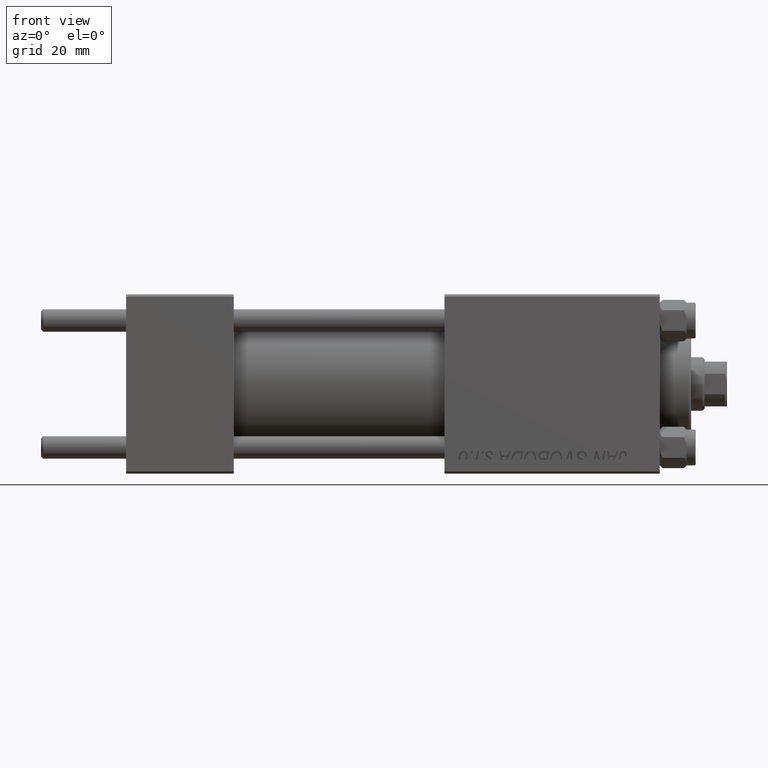
[diagram: clean part render]
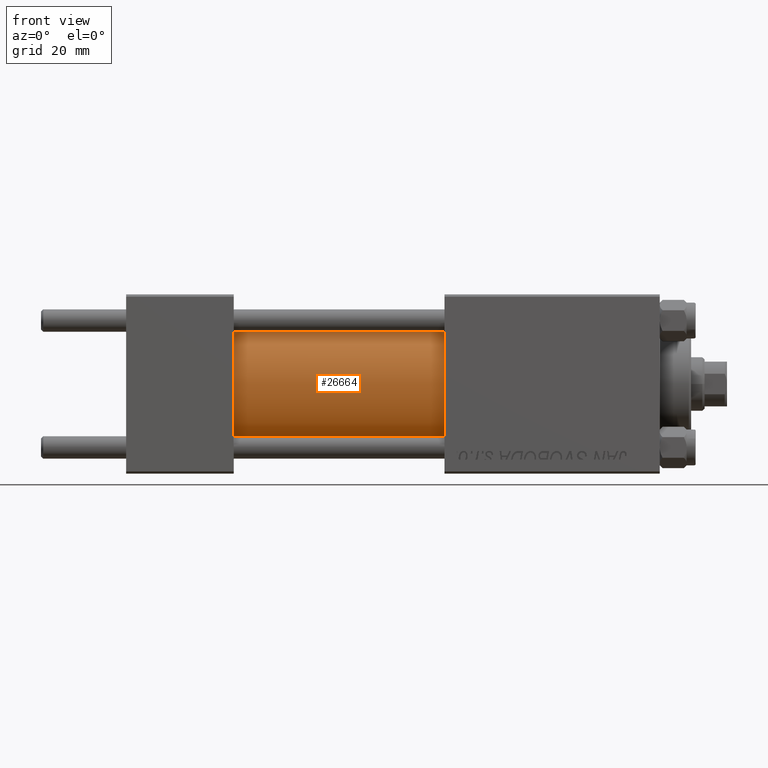
[diagram: same view with one face highlighted and labeled with its STEP entity id]
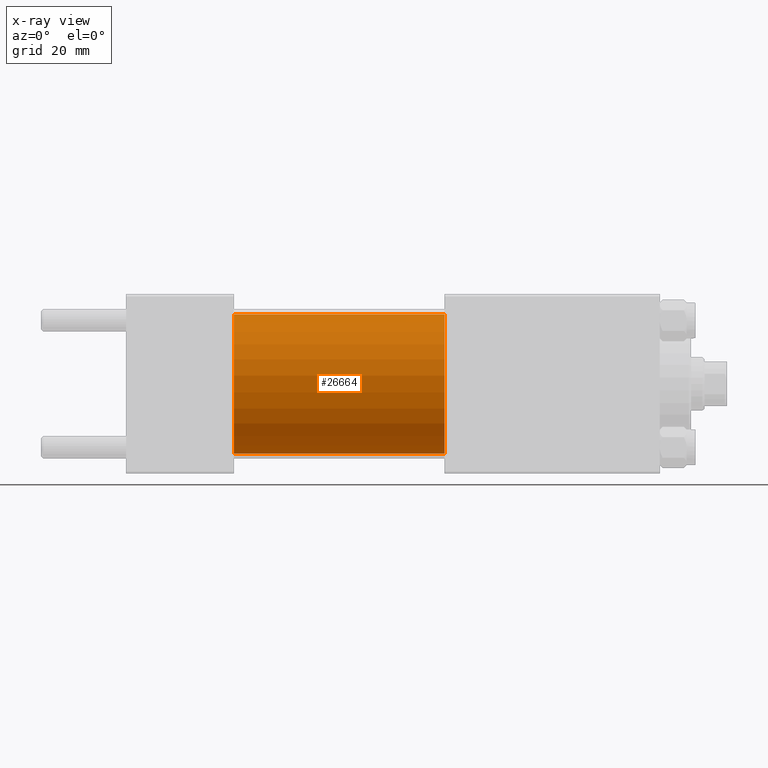
[diagram: x-ray of the same camera — body ghosted, the highlighted face saturated]
A machine part, front view. The second image highlights one B-rep face of the part: STEP entity #26664.
The next image is the same camera in x-ray: the body ghosted, the highlighted face saturated — about 0% of this face is hidden behind the body in this view.
In plain terms, the highlighted cylindrical surface (partial cylindrical patch) has radius 15.5 mm, axis along (-1, -0, -0).
Its self-contained STEP definition (entity closure, byte-faithful):
#774 = DIRECTION ( 'NONE',  ( -1.000000000000000000, -0.000000000000000000, -0.000000000000000000 ) ) ;
#1456 = DIRECTION ( 'NONE',  ( -1.000000000000000000, -0.000000000000000000, -0.000000000000000000 ) ) ;
#2031 = ORIENTED_EDGE ( 'NONE', *, *, #20470, .F. ) ;
#4045 = CYLINDRICAL_SURFACE ( 'NONE', #48709, 15.50000000000000000 ) ;
#4919 = CIRCLE ( 'NONE', #39506, 15.50000000000000000 ) ;
#10260 = VERTEX_POINT ( 'NONE', #39350 ) ;
#11316 = DIRECTION ( 'NONE',  ( 0.000000000000000000, 0.000000000000000000, -1.000000000000000000 ) ) ;
#11341 = CARTESIAN_POINT ( 'NONE',  ( 71.00000000000001421, 0.000000000000000000, 15.50000000000000000 ) ) ;
#11375 = EDGE_CURVE ( 'NONE', #10260, #33858, #4919, .T. ) ;
#11708 = ORIENTED_EDGE ( 'NONE', *, *, #28096, .F. ) ;
#12758 = CARTESIAN_POINT ( 'NONE',  ( 71.00000000000001421, 0.000000000000000000, 15.50000000000000000 ) ) ;
#14467 = EDGE_CURVE ( 'NONE', #41998, #10260, #48033, .T. ) ;
#18868 = CARTESIAN_POINT ( 'NONE',  ( 71.00000000000001421, 0.000000000000000000, 0.000000000000000000 ) ) ;
#19214 = LINE ( 'NONE', #23240, #40612 ) ;
#20470 = EDGE_CURVE ( 'NONE', #39062, #33858, #19214, .T. ) ;
#21907 = VECTOR ( 'NONE', #1456, 1000.000000000000000 ) ;
#23240 = CARTESIAN_POINT ( 'NONE',  ( 71.00000000000001421, 1.898202538678397557E-15, -15.50000000000000000 ) ) ;
#23820 = CARTESIAN_POINT ( 'NONE',  ( 71.00000000000001421, 1.898202538678397557E-15, -15.50000000000000000 ) ) ;
#24449 = CARTESIAN_POINT ( 'NONE',  ( 24.00000000000000000, 1.898202538678397557E-15, -15.50000000000000000 ) ) ;
#26664 = ADVANCED_FACE ( 'NONE', ( #39281 ), #4045, .T. ) ;
#28096 = EDGE_CURVE ( 'NONE', #41998, #39062, #31061, .T. ) ;
#28208 = DIRECTION ( 'NONE',  ( 1.000000000000000000, 0.000000000000000000, 0.000000000000000000 ) ) ;
#31061 = CIRCLE ( 'NONE', #41545, 15.50000000000000000 ) ;
#31467 = DIRECTION ( 'NONE',  ( 0.000000000000000000, 0.000000000000000000, 1.000000000000000000 ) ) ;
#31598 = ORIENTED_EDGE ( 'NONE', *, *, #14467, .T. ) ;
#33858 = VERTEX_POINT ( 'NONE', #24449 ) ;
#35246 = CARTESIAN_POINT ( 'NONE',  ( 71.00000000000001421, 0.000000000000000000, 0.000000000000000000 ) ) ;
#39062 = VERTEX_POINT ( 'NONE', #23820 ) ;
#39281 = FACE_OUTER_BOUND ( 'NONE', #43881, .T. ) ;
#39350 = CARTESIAN_POINT ( 'NONE',  ( 24.00000000000000000, 0.000000000000000000, 15.50000000000000000 ) ) ;
#39506 = AXIS2_PLACEMENT_3D ( 'NONE', #47367, #28208, #43583 ) ;
#40612 = VECTOR ( 'NONE', #42892, 1000.000000000000000 ) ;
#40971 = ORIENTED_EDGE ( 'NONE', *, *, #11375, .T. ) ;
#41545 = AXIS2_PLACEMENT_3D ( 'NONE', #18868, #45831, #11316 ) ;
#41998 = VERTEX_POINT ( 'NONE', #11341 ) ;
#42892 = DIRECTION ( 'NONE',  ( -1.000000000000000000, -0.000000000000000000, -0.000000000000000000 ) ) ;
#43583 = DIRECTION ( 'NONE',  ( 0.000000000000000000, 0.000000000000000000, 1.000000000000000000 ) ) ;
#43881 = EDGE_LOOP ( 'NONE', ( #2031, #11708, #31598, #40971 ) ) ;
#45831 = DIRECTION ( 'NONE',  ( 1.000000000000000000, 0.000000000000000000, 0.000000000000000000 ) ) ;
#47367 = CARTESIAN_POINT ( 'NONE',  ( 24.00000000000000000, 0.000000000000000000, 0.000000000000000000 ) ) ;
#48033 = LINE ( 'NONE', #12758, #21907 ) ;
#48709 = AXIS2_PLACEMENT_3D ( 'NONE', #35246, #774, #31467 ) ;